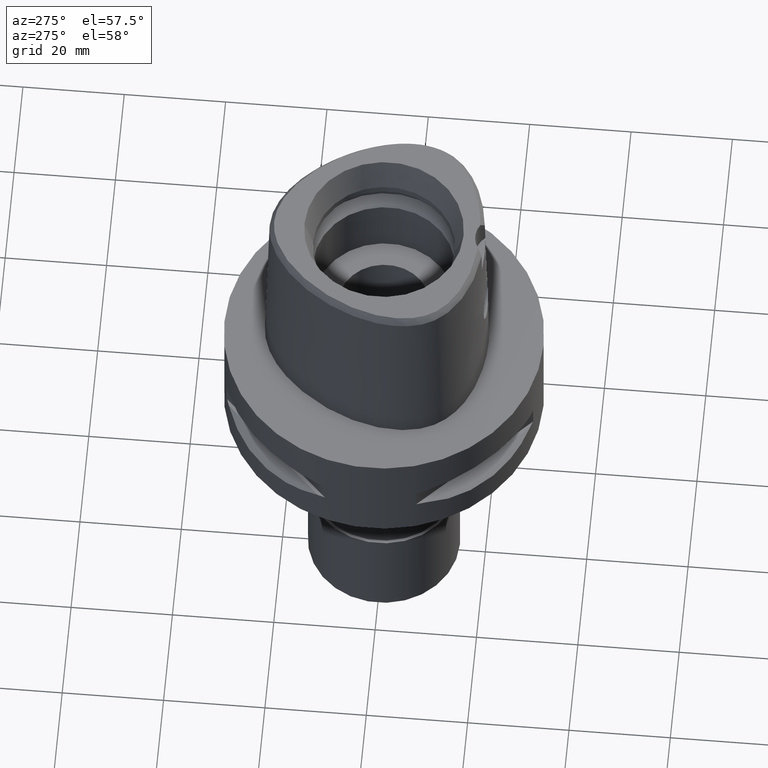
[diagram: clean part render]
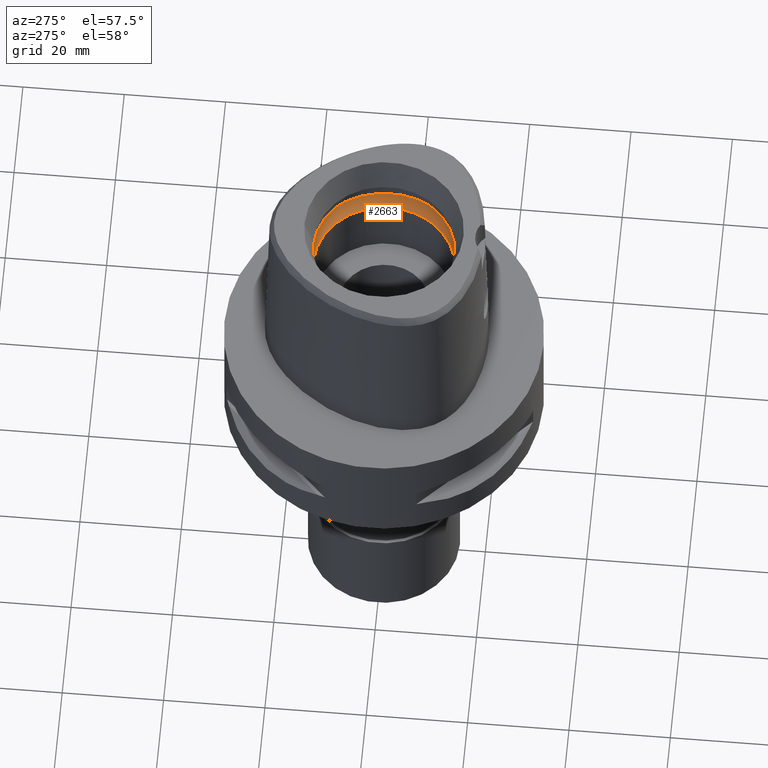
[diagram: same view with one face highlighted and labeled with its STEP entity id]
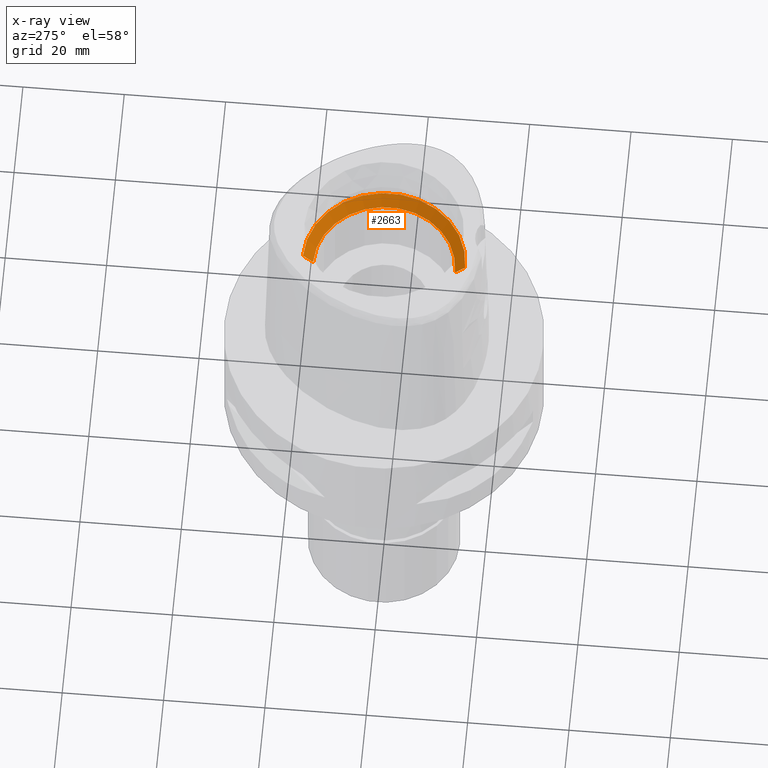
[diagram: x-ray of the same camera — body ghosted, the highlighted face saturated]
A machine part, auxiliary view. The second image highlights one B-rep face of the part: STEP entity #2663.
The next image is the same camera in x-ray: the body ghosted, the highlighted face saturated — about 0% of this face is hidden behind the body in this view.
In plain terms, the highlighted conical surface has half-angle 45 deg.
Its self-contained STEP definition (entity closure, byte-faithful):
#169 = ORIENTED_EDGE ( 'NONE', *, *, #1289, .F. ) ;
#230 = AXIS2_PLACEMENT_3D ( 'NONE', #4734, #249, #1299 ) ;
#249 = DIRECTION ( 'NONE',  ( 0.0000000000000000000, 0.0000000000000000000, -1.000000000000000000 ) ) ;
#260 = DIRECTION ( 'NONE',  ( 0.0000000000000000000, 1.000000000000000000, 0.0000000000000000000 ) ) ;
#348 = ORIENTED_EDGE ( 'NONE', *, *, #2151, .F. ) ;
#361 = CIRCLE ( 'NONE', #3428, 14.00000000000000000 ) ;
#516 = CARTESIAN_POINT ( 'NONE',  ( 0.0000000000000000000, 16.00000000000000000, 26.20000000000000284 ) ) ;
#542 = CARTESIAN_POINT ( 'NONE',  ( 0.0000000000000000000, -14.00000000000000000, 24.19999999999999929 ) ) ;
#610 = EDGE_CURVE ( 'NONE', #4273, #1588, #3106, .T. ) ;
#631 = AXIS2_PLACEMENT_3D ( 'NONE', #3630, #3577, #260 ) ;
#856 = VECTOR ( 'NONE', #2823, 1000.000000000000114 ) ;
#1195 = DIRECTION ( 'NONE',  ( 0.0000000000000000000, 0.7071067811865474617, 0.7071067811865474617 ) ) ;
#1289 = EDGE_CURVE ( 'NONE', #1588, #3876, #3530, .T. ) ;
#1299 = DIRECTION ( 'NONE',  ( 0.0000000000000000000, 1.000000000000000000, 0.0000000000000000000 ) ) ;
#1411 = EDGE_LOOP ( 'NONE', ( #169, #3476, #348, #4193 ) ) ;
#1588 = VERTEX_POINT ( 'NONE', #516 ) ;
#1686 = VERTEX_POINT ( 'NONE', #2301 ) ;
#1720 = VECTOR ( 'NONE', #1195, 1000.000000000000114 ) ;
#2151 = EDGE_CURVE ( 'NONE', #1686, #4273, #361, .T. ) ;
#2247 = CARTESIAN_POINT ( 'NONE',  ( 0.0000000000000000000, -16.00000000000000000, 26.20000000000000284 ) ) ;
#2258 = CARTESIAN_POINT ( 'NONE',  ( 0.0000000000000000000, 0.0000000000000000000, 24.19999999999999929 ) ) ;
#2301 = CARTESIAN_POINT ( 'NONE',  ( 0.0000000000000000000, -14.00000000000000000, 24.19999999999999929 ) ) ;
#2348 = CONICAL_SURFACE ( 'NONE', #631, 15.00000000000000000, 0.7853981633972997312 ) ;
#2471 = CARTESIAN_POINT ( 'NONE',  ( 0.0000000000000000000, 14.00000000000000000, 24.19999999999999929 ) ) ;
#2495 = EDGE_CURVE ( 'NONE', #1686, #3876, #3919, .T. ) ;
#2523 = CARTESIAN_POINT ( 'NONE',  ( 0.0000000000000000000, 14.00000000000000000, 24.19999999999999929 ) ) ;
#2663 = ADVANCED_FACE ( 'NONE', ( #4669 ), #2348, .F. ) ;
#2823 = DIRECTION ( 'NONE',  ( 0.0000000000000000000, -0.7071067811865474617, 0.7071067811865474617 ) ) ;
#3106 = LINE ( 'NONE', #2471, #1720 ) ;
#3428 = AXIS2_PLACEMENT_3D ( 'NONE', #2258, #4137, #4162 ) ;
#3476 = ORIENTED_EDGE ( 'NONE', *, *, #610, .F. ) ;
#3530 = CIRCLE ( 'NONE', #230, 16.00000000000000000 ) ;
#3577 = DIRECTION ( 'NONE',  ( 0.0000000000000000000, 0.0000000000000000000, 1.000000000000000000 ) ) ;
#3630 = CARTESIAN_POINT ( 'NONE',  ( 0.0000000000000000000, 0.0000000000000000000, 25.19999999999999929 ) ) ;
#3876 = VERTEX_POINT ( 'NONE', #2247 ) ;
#3919 = LINE ( 'NONE', #542, #856 ) ;
#4137 = DIRECTION ( 'NONE',  ( 0.0000000000000000000, 0.0000000000000000000, 1.000000000000000000 ) ) ;
#4162 = DIRECTION ( 'NONE',  ( 0.0000000000000000000, -1.000000000000000000, 0.0000000000000000000 ) ) ;
#4193 = ORIENTED_EDGE ( 'NONE', *, *, #2495, .T. ) ;
#4273 = VERTEX_POINT ( 'NONE', #2523 ) ;
#4669 = FACE_OUTER_BOUND ( 'NONE', #1411, .T. ) ;
#4734 = CARTESIAN_POINT ( 'NONE',  ( 0.0000000000000000000, 0.0000000000000000000, 26.20000000000000284 ) ) ;